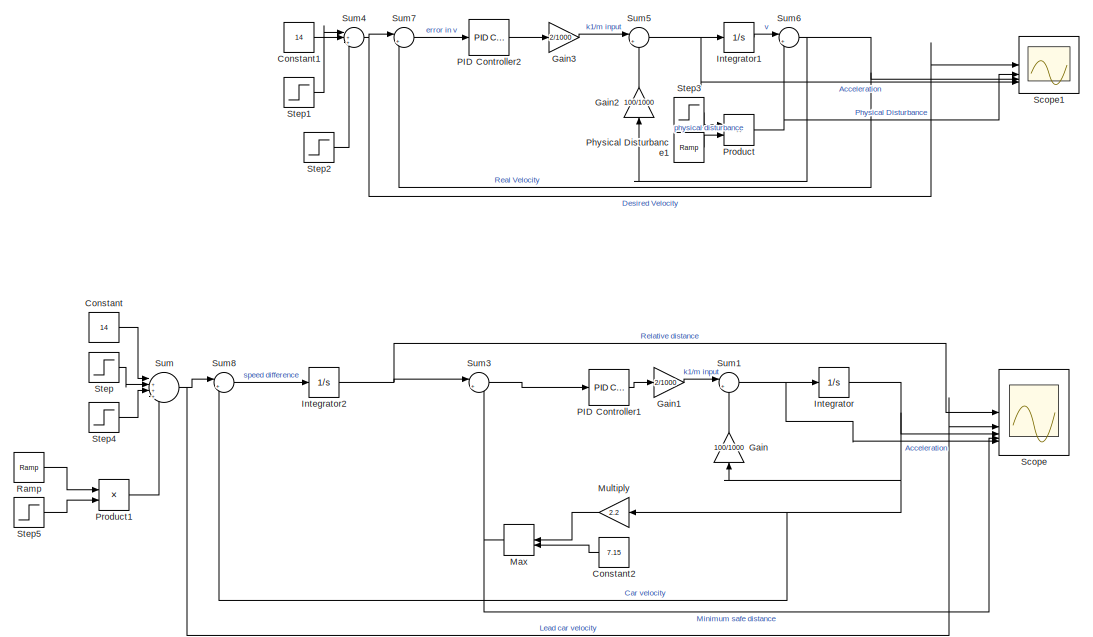
[diagram: root canvas - part 1/2, top left region]
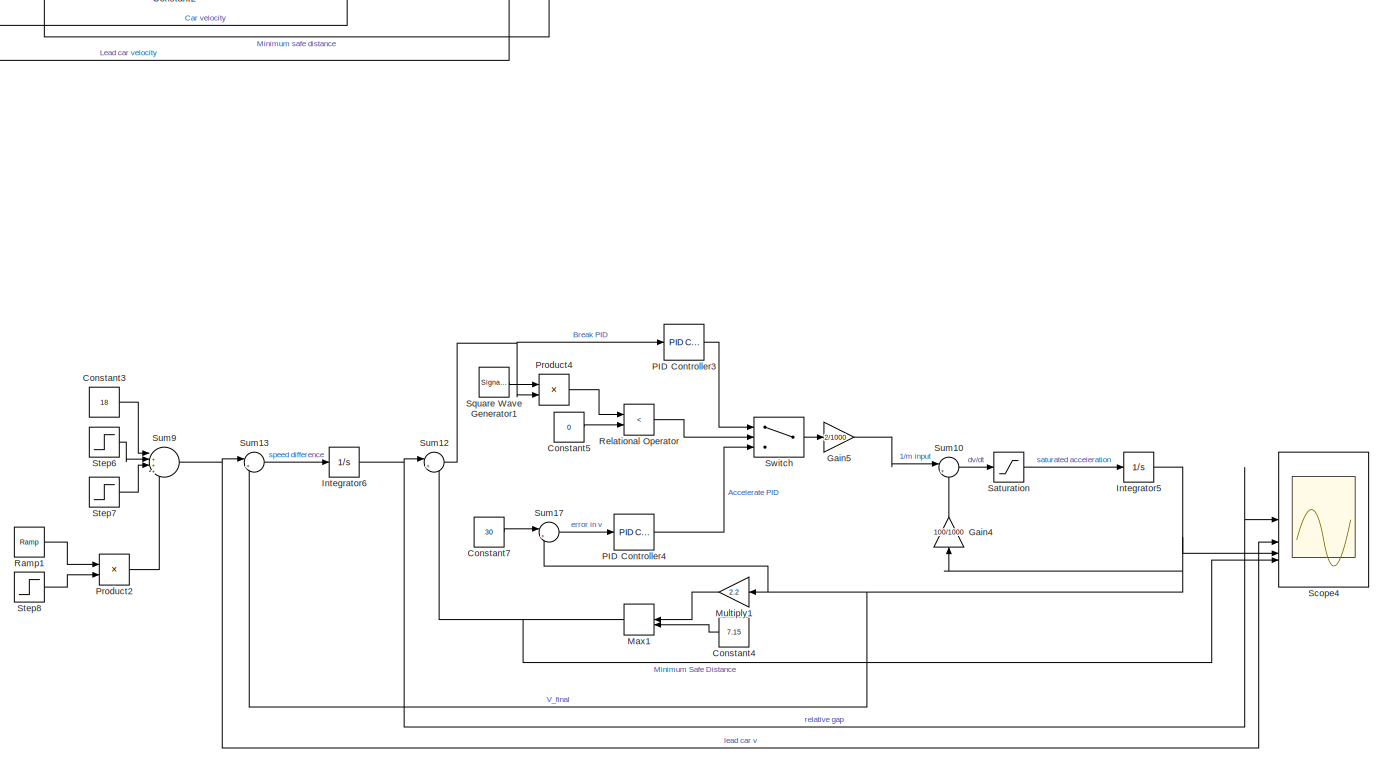
[diagram: root canvas - part 2/2, full width, bottom band]
MODEL slx_e14d0ea35c8f
KIND model
CONFIG AbsTol = auto
CONFIG EnableMultiTasking = off
CONFIG FixedStep = auto
CONFIG MaxStep = auto
CONFIG MinStep = auto
CONFIG RelTol = 1e-3
CONFIG SampleTimeConstraint = Unconstrained
CONFIG SolverName = VariableStepAuto
CONFIG StartTime = 0.0
CONFIG StopTime = 300
BLOCK [Constant] Constant
  Value = 14
BLOCK [Constant] Constant1
  Value = 14
BLOCK [Constant] Constant2
  Value = 7.15
BLOCK [Constant] Constant3
  Value = 18
BLOCK [Constant] Constant4
  Value = 7.15
BLOCK [Constant] Constant5
  Value = 0
BLOCK [Constant] Constant7
  Value = 30
BLOCK [Gain] Gain
  Gain = 100/1000
  NameLocation = right
BLOCK [Gain] Gain1
  Gain = 2/1000
BLOCK [Gain] Gain2
  Gain = 100/1000
  NameLocation = right
BLOCK [Gain] Gain3
  Gain = 2/1000
BLOCK [Gain] Gain4
  Gain = 100/1000
  NameLocation = right
BLOCK [Gain] Gain5
  Gain = 2/1000
BLOCK [Integrator] Integrator
BLOCK [Integrator] Integrator1
BLOCK [Integrator] Integrator2
BLOCK [Integrator] Integrator5
BLOCK [Integrator] Integrator6
BLOCK [MinMax] Max
  Function = max
  Inputs = 2
  NameLocation = top
BLOCK [MinMax] Max1
  Function = max
  Inputs = 2
  NameLocation = top
BLOCK [Gain] Multiply
  Gain = 2.2
  NameLocation = top
BLOCK [Gain] Multiply1
  Gain = 2.2
  NameLocation = top
BLOCK [Reference] PID Controller1  REF=slpidlib/PID Controller
  LibrarySourceBlock = simulink/Continuous/PID Controller
  SourceBlock = slpidlib/PID Controller
  SourceType = PID 1dof
BLOCK [Reference] PID Controller2  REF=slpidlib/PID Controller
  LibrarySourceBlock = simulink/Continuous/PID Controller
  SourceBlock = slpidlib/PID Controller
  SourceType = PID 1dof
BLOCK [Reference] PID Controller3  REF=slpidlib/PID Controller
  LibrarySourceBlock = simulink/Continuous/PID Controller
  NameLocation = left
  SourceBlock = slpidlib/PID Controller
  SourceType = PID 1dof
BLOCK [Reference] PID Controller4  REF=slpidlib/PID Controller
  LibrarySourceBlock = simulink/Continuous/PID Controller
  SourceBlock = slpidlib/PID Controller
  SourceType = PID 1dof
BLOCK [Reference] Physical Disturbance1  REF=simulink/Sources/Ramp
  SourceBlock = simulink/Sources/Ramp
  SourceType = Ramp
BLOCK [Product] Product
BLOCK [Product] Product1
BLOCK [Product] Product2
BLOCK [Product] Product4
BLOCK [Reference] Ramp  REF=simulink/Sources/Ramp
  SourceBlock = simulink/Sources/Ramp
  SourceType = Ramp
BLOCK [Reference] Ramp1  REF=simulink/Sources/Ramp
  SourceBlock = simulink/Sources/Ramp
  SourceType = Ramp
BLOCK [RelationalOperator] Relational Operator
  InputSameDT = off
  Operator = <
  OutDataTypeStr = boolean
  RndMeth = Simplest
  ZeroCross = off
BLOCK [Saturate] Saturation
  LowerLimit = -3
  UpperLimit = 2
BLOCK [Scope] Scope
  ActiveDisplayYMaximum = 104.93984998209007
  ActiveDisplayYMinimum = -13.879141248351409
  ContainerLayout = {"WindowBounds":[-6,214,1549,832],"gridDimensions":{"w":1,"h":1},"tileCount":1,"tileCoverage":1,"columnWeights":1,"rowWeights":1,"tileOccupancy":{"children":[{"id":"/Scope4"},{"id":"/Scope"}]}}
  DataLoggingVariableName = ScopeData1
  Floating = off
  GraphicalSettings = {"Style":{"BackgroundColor":[0.12941176470588237,0.12941176470588237,0.12941176470588237],"AxesColor":[0.07058823529411765,0.07058823529411765,0.07058823529411765],"LabelsColor":[0.8509803921568627,0.8509803921568627,0.8509803921568627],"PreserveColors":false,"Visible":[true,true,true,true,true],"LineStyle":["-","-","-","-","-"],"LineWidth":[1.5,1.5,1.5,1.5,1.5],"BarWidth":[0.9,0.9,0.9,0.9,0.9],"L...<+2543ch>
  MultipleDisplayCache = [{"MaxYLimMag":104.93984998209007,"MaxYLimReal":104.93984998209007,"MinYLimMag":0,"MinYLimReal":-13.879141248351409,"PlotAsMagnitudePhase":false,"ShowGrid":true,"ShowLegend":false,"Title":"%<SignalLabel>","YLabel":""}]
  NumInputPorts = 5
  ScopeFrameLocation = container
  Visible = on
  WasSavedAsWebScope = on
  WindowPosition = [1.000000,41.000000,1536.000000,801.000000,]
BLOCK [Scope] Scope1
  ActiveDisplayYMaximum = 1
  ActiveDisplayYMinimum = -1
  Floating = off
  GraphicalSettings = {"Style":{"BackgroundColor":[0.12941176470588237,0.12941176470588237,0.12941176470588237],"AxesColor":[0.07058823529411765,0.07058823529411765,0.07058823529411765],"LabelsColor":[0.8509803921568627,0.8509803921568627,0.8509803921568627],"PreserveColors":false,"Visible":[true,true,true,true],"LineStyle":["-","-","-","-"],"LineWidth":[1.5,1.5,1.5,1.5],"BarWidth":[0.9,0.9,0.9,0.9],"LineColor":["auto"...<+2407ch>
  MultipleDisplayCache = [{"MaxYLimMag":1,"MaxYLimReal":1,"MinYLimMag":0,"MinYLimReal":-1,"PlotAsMagnitudePhase":false,"ShowGrid":true,"ShowLegend":false,"Title":"%<SignalLabel>","YLabel":""}]
  NumInputPorts = 4
  ScopeFrameLocation = window
  WasSavedAsWebScope = on
  WindowPosition = [1.000000,41.000000,1536.000000,801.000000,]
BLOCK [Scope] Scope4
  ActiveDisplayYMaximum = 124.07366349134168
  ActiveDisplayYMinimum = -14.992128960352009
  ContainerLayout = {"WindowBounds":[-6,214,1549,832],"gridDimensions":{"w":1,"h":1},"tileCount":1,"tileCoverage":1,"columnWeights":1,"rowWeights":1,"tileOccupancy":{"children":[{"id":"/Scope4"},{"id":"/Scope"}]}}
  DataLoggingVariableName = ScopeData4
  Floating = off
  GraphicalSettings = {"Style":{"BackgroundColor":[0.12941176470588237,0.12941176470588237,0.12941176470588237],"AxesColor":[0.07058823529411765,0.07058823529411765,0.07058823529411765],"LabelsColor":[0.8509803921568627,0.8509803921568627,0.8509803921568627],"PreserveColors":false,"Visible":[true,true,true,true],"LineStyle":["-","-","-","-"],"LineWidth":[1.5,1.5,1.5,1.5],"BarWidth":[0.9,0.9,0.9,0.9],"LineColor":["auto"...<+2388ch>
  MultipleDisplayCache = [{"MaxYLimMag":113.52309587893362,"MaxYLimReal":124.07366349134168,"MinYLimMag":0,"MinYLimReal":-14.992128960352009,"PlotAsMagnitudePhase":false,"ShowGrid":true,"ShowLegend":false,"Title":"%<SignalLabel>","YLabel":""}]
  NumInputPorts = 4
  ScopeFrameLocation = container
  Visible = on
  WasSavedAsWebScope = on
  WindowPosition = [1.000000,41.000000,1536.000000,801.000000,]
BLOCK [SignalGenerator] Square Wave Generator1
  Frequency = 10
  WaveForm = square
BLOCK [Step] Step
  After = 8
  SampleTime = 60
  Time = 50
BLOCK [Step] Step1
  After = 8
  SampleTime = 60
  Time = 50
BLOCK [Step] Step2
  After = 10
  SampleTime = 200
  Time = 50
BLOCK [Step] Step3
  After = 0
  Before = 1
  SampleTime = 0
  Time = 220
BLOCK [Step] Step4
  After = 3
  SampleTime = 60
  Time = 150
BLOCK [Step] Step5
  After = 0
  Before = 1
  SampleTime = 25
  Time = 275
BLOCK [Step] Step6
  After = 4
  SampleTime = 60
  Time = 50
BLOCK [Step] Step7
  After = 3
  SampleTime = 60
  Time = 150
BLOCK [Step] Step8
  After = 0
  Before = 1
  SampleTime = 25
  Time = 275
BLOCK [Sum] Sum
  Inputs = |+++-
BLOCK [Sum] Sum1
  Inputs = |+-
BLOCK [Sum] Sum10
  Inputs = |+-
BLOCK [Sum] Sum12
  Inputs = |+-
BLOCK [Sum] Sum13
  Inputs = |+-
BLOCK [Sum] Sum17
  Inputs = |+-
BLOCK [Sum] Sum3
  Inputs = |+-
BLOCK [Sum] Sum4
  Inputs = |++-
BLOCK [Sum] Sum5
  Inputs = |+-
BLOCK [Sum] Sum6
  Inputs = |+-
BLOCK [Sum] Sum7
  Inputs = |+-
BLOCK [Sum] Sum8
  Inputs = |+-
BLOCK [Sum] Sum9
  Inputs = |+++-
BLOCK [Switch] Switch
  Criteria = u2 > Threshold
  InputSameDT = off
  SaturateOnIntegerOverflow = off
LINE Constant1:1 -> Sum4:1
LINE Constant2:1 -> Max:2
LINE Constant3:1 -> Sum9:1
LINE Constant4:1 -> Max1:2
LINE Constant5:1 -> Relational Operator:2
LINE Constant7:1 -> Sum17:1
LINE Constant:1 -> Sum:1
LINE Gain1:1 -> Sum1:1
LINE Gain2:1 -> Sum5:2
LINE Gain3:1 -> Sum5:1
LINE Gain4:1 -> Sum10:2
LINE Gain5:1 -> Sum10:1
LINE Gain:1 -> Sum1:2
LINE Integrator1:1 -> Sum6:1
NET Integrator2:1 -> Scope:1, Sum3:1
NET Integrator5:1 -> Gain4:1, Multiply1:1, Scope4:3, Sum13:2, Sum17:2
NET Integrator6:1 -> Scope4:1, Sum12:1
NET Integrator:1 -> Gain:1, Multiply:1, Scope:3, Sum8:2
NET Max1:1 -> Scope4:4, Sum12:2
NET Max:1 -> Scope:4, Sum3:2
LINE Multiply1:1 -> Max1:1
LINE Multiply:1 -> Max:1
LINE PID Controller1:1 -> Gain1:1
LINE PID Controller2:1 -> Gain3:1
LINE PID Controller3:1 -> Switch:1
LINE PID Controller4:1 -> Switch:3
LINE Physical Disturbance1:1 -> Product:2
LINE Product1:1 -> Sum:4
LINE Product2:1 -> Sum9:4
LINE Product4:1 -> Relational Operator:1
NET Product:1 -> Scope1:2, Sum6:2
LINE Ramp1:1 -> Product2:1
LINE Ramp:1 -> Product1:1
LINE Relational Operator:1 -> Switch:2
LINE Saturation:1 -> Integrator5:1
LINE Square Wave Generator1:1 -> Product4:1
LINE Step1:1 -> Sum4:2
LINE Step2:1 -> Sum4:3
LINE Step3:1 -> Product:1
LINE Step4:1 -> Sum:3
LINE Step5:1 -> Product1:2
LINE Step6:1 -> Sum9:2
LINE Step7:1 -> Sum9:3
LINE Step8:1 -> Product2:2
LINE Step:1 -> Sum:2
LINE Sum10:1 -> Saturation:1
NET Sum12:1 -> PID Controller3:1, Product4:2
LINE Sum13:1 -> Integrator6:1
LINE Sum17:1 -> PID Controller4:1
NET Sum1:1 -> Integrator:1, Scope:5
LINE Sum3:1 -> PID Controller1:1
NET Sum4:1 -> Scope1:1, Sum7:1
NET Sum5:1 -> Integrator1:1, Scope1:4
NET Sum6:1 -> Gain2:1, Scope1:3, Sum7:2
LINE Sum7:1 -> PID Controller2:1
LINE Sum8:1 -> Integrator2:1
NET Sum9:1 -> Scope4:2, Sum13:1
NET Sum:1 -> Scope:2, Sum8:1
LINE Switch:1 -> Gain5:1
note: NET lines group one-source signal fan-out (src -> all destinations, sorted); 1:1 wires keep LINE
